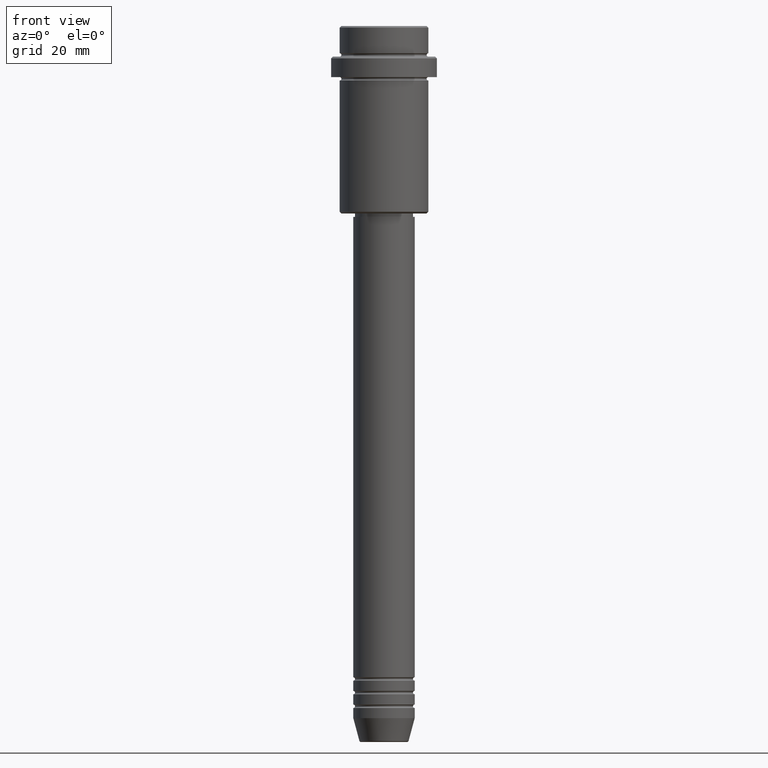
[diagram: clean part render]
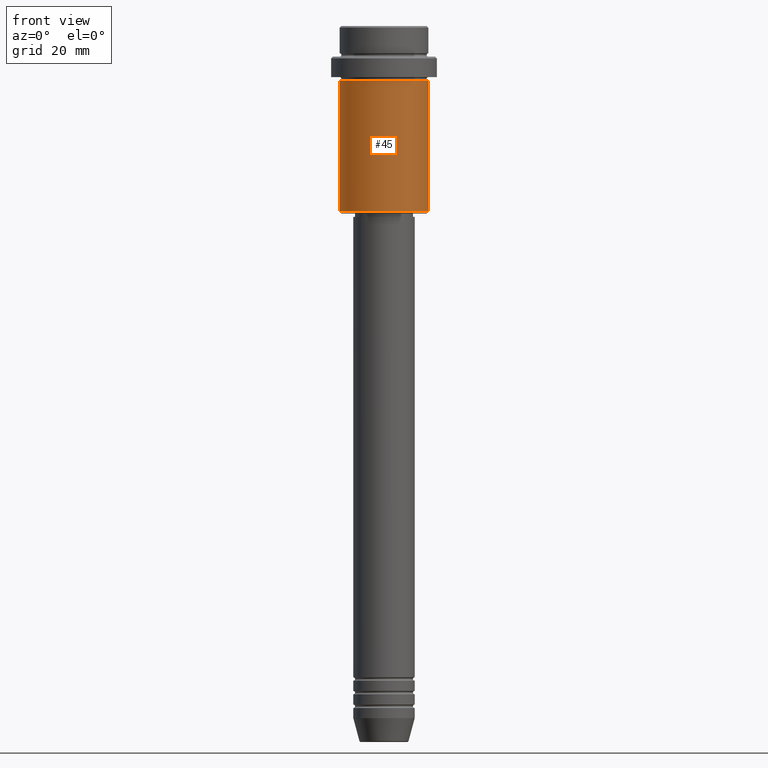
[diagram: same view with one face highlighted and labeled with its STEP entity id]
A machine part, front view. The second image highlights one B-rep face of the part: STEP entity #45.
In plain terms, the highlighted cylindrical surface (partial cylindrical patch) has radius 13 mm, axis along (-0, -0, 1).
Its self-contained STEP definition (entity closure, byte-faithful):
#45 = ADVANCED_FACE ( 'NONE', ( #549 ), #1216, .T. ) ;
#89 = VECTOR ( 'NONE', #569, 1000.000000000000000 ) ;
#104 = AXIS2_PLACEMENT_3D ( 'NONE', #822, #1261, #298 ) ;
#138 = ORIENTED_EDGE ( 'NONE', *, *, #895, .T. ) ;
#139 = DIRECTION ( 'NONE',  ( -0.000000000000000000, -0.000000000000000000, 1.000000000000000000 ) ) ;
#275 = CARTESIAN_POINT ( 'NONE',  ( 13.00000000000000000, 0.000000000000000000, -16.00000000000000000 ) ) ;
#286 = DIRECTION ( 'NONE',  ( 1.000000000000000000, 0.000000000000000000, 0.000000000000000000 ) ) ;
#295 = EDGE_CURVE ( 'NONE', #471, #617, #943, .T. ) ;
#298 = DIRECTION ( 'NONE',  ( 1.000000000000000000, 0.000000000000000000, 0.000000000000000000 ) ) ;
#353 = VECTOR ( 'NONE', #1228, 1000.000000000000000 ) ;
#368 = CARTESIAN_POINT ( 'NONE',  ( 0.000000000000000000, 0.000000000000000000, -54.50000000000002842 ) ) ;
#388 = DIRECTION ( 'NONE',  ( -0.000000000000000000, -0.000000000000000000, 1.000000000000000000 ) ) ;
#411 = ORIENTED_EDGE ( 'NONE', *, *, #811, .F. ) ;
#457 = CARTESIAN_POINT ( 'NONE',  ( 13.00000000000000000, 0.000000000000000000, 0.000000000000000000 ) ) ;
#460 = CARTESIAN_POINT ( 'NONE',  ( -13.00000000000000000, 1.592040838891559095E-15, -54.50000000000002842 ) ) ;
#471 = VERTEX_POINT ( 'NONE', #1103 ) ;
#549 = FACE_OUTER_BOUND ( 'NONE', #891, .T. ) ;
#555 = EDGE_CURVE ( 'NONE', #695, #617, #761, .T. ) ;
#569 = DIRECTION ( 'NONE',  ( -0.000000000000000000, -0.000000000000000000, 1.000000000000000000 ) ) ;
#586 = CARTESIAN_POINT ( 'NONE',  ( -13.00000000000000000, 1.592040838891559095E-15, 0.000000000000000000 ) ) ;
#617 = VERTEX_POINT ( 'NONE', #275 ) ;
#695 = VERTEX_POINT ( 'NONE', #853 ) ;
#710 = DIRECTION ( 'NONE',  ( -1.000000000000000000, 0.000000000000000000, 0.000000000000000000 ) ) ;
#741 = ORIENTED_EDGE ( 'NONE', *, *, #555, .F. ) ;
#761 = CIRCLE ( 'NONE', #104, 13.00000000000000000 ) ;
#809 = VERTEX_POINT ( 'NONE', #460 ) ;
#811 = EDGE_CURVE ( 'NONE', #809, #695, #1027, .T. ) ;
#822 = CARTESIAN_POINT ( 'NONE',  ( 0.000000000000000000, 0.000000000000000000, -16.00000000000000000 ) ) ;
#853 = CARTESIAN_POINT ( 'NONE',  ( -13.00000000000000000, 1.592040838891559095E-15, -16.00000000000000000 ) ) ;
#891 = EDGE_LOOP ( 'NONE', ( #411, #138, #1051, #741 ) ) ;
#895 = EDGE_CURVE ( 'NONE', #809, #471, #1390, .T. ) ;
#943 = LINE ( 'NONE', #457, #353 ) ;
#1027 = LINE ( 'NONE', #586, #89 ) ;
#1051 = ORIENTED_EDGE ( 'NONE', *, *, #295, .T. ) ;
#1103 = CARTESIAN_POINT ( 'NONE',  ( 13.00000000000000000, 0.000000000000000000, -54.50000000000002842 ) ) ;
#1216 = CYLINDRICAL_SURFACE ( 'NONE', #1245, 13.00000000000000000 ) ;
#1228 = DIRECTION ( 'NONE',  ( -0.000000000000000000, -0.000000000000000000, 1.000000000000000000 ) ) ;
#1236 = AXIS2_PLACEMENT_3D ( 'NONE', #368, #139, #710 ) ;
#1245 = AXIS2_PLACEMENT_3D ( 'NONE', #1365, #388, #286 ) ;
#1261 = DIRECTION ( 'NONE',  ( -0.000000000000000000, -0.000000000000000000, 1.000000000000000000 ) ) ;
#1365 = CARTESIAN_POINT ( 'NONE',  ( 0.000000000000000000, 0.000000000000000000, 0.000000000000000000 ) ) ;
#1390 = CIRCLE ( 'NONE', #1236, 13.00000000000000000 ) ;